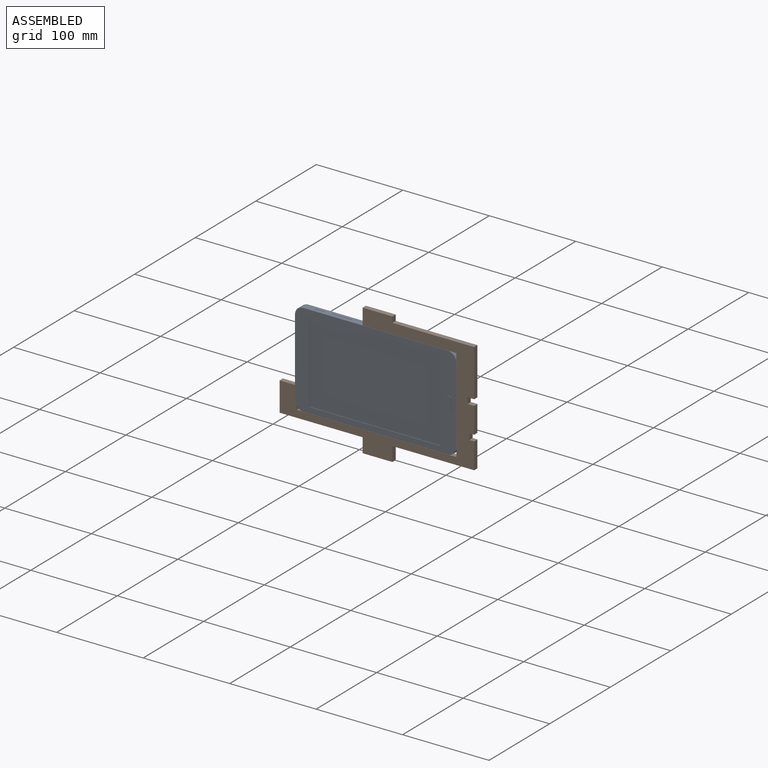
[diagram: assembled view]
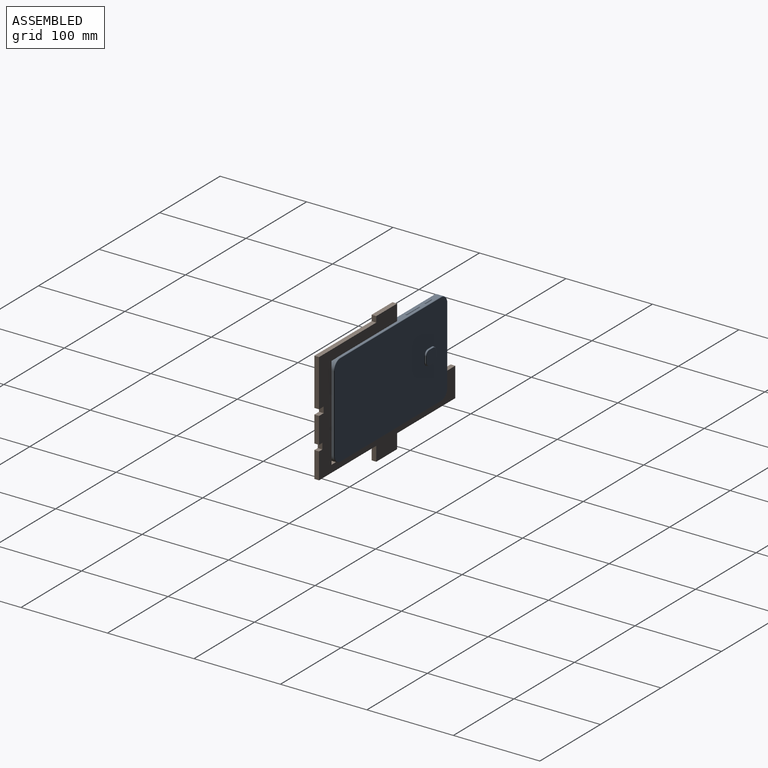
[diagram: assembled view, second angle]
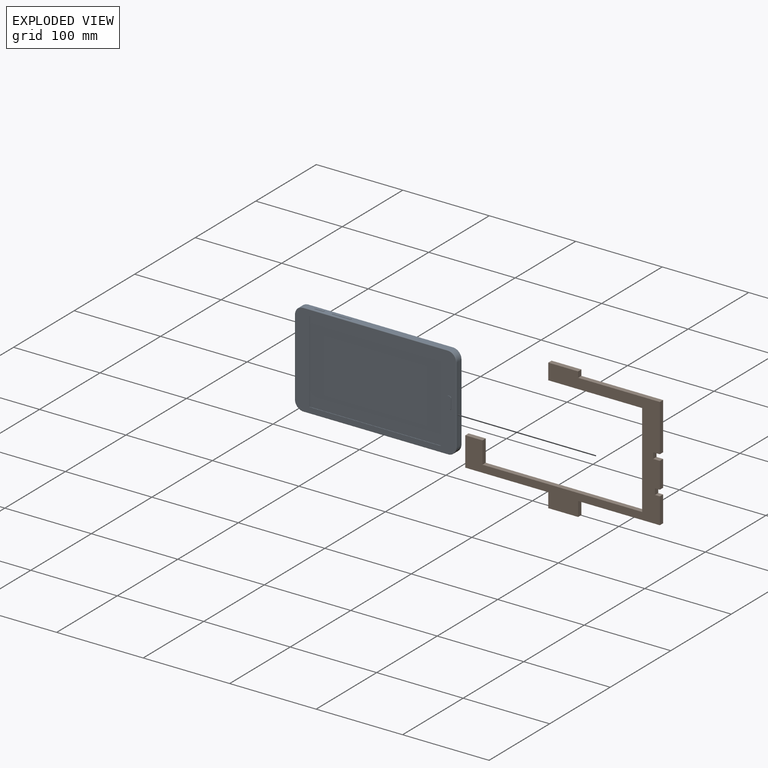
[diagram: exploded view]
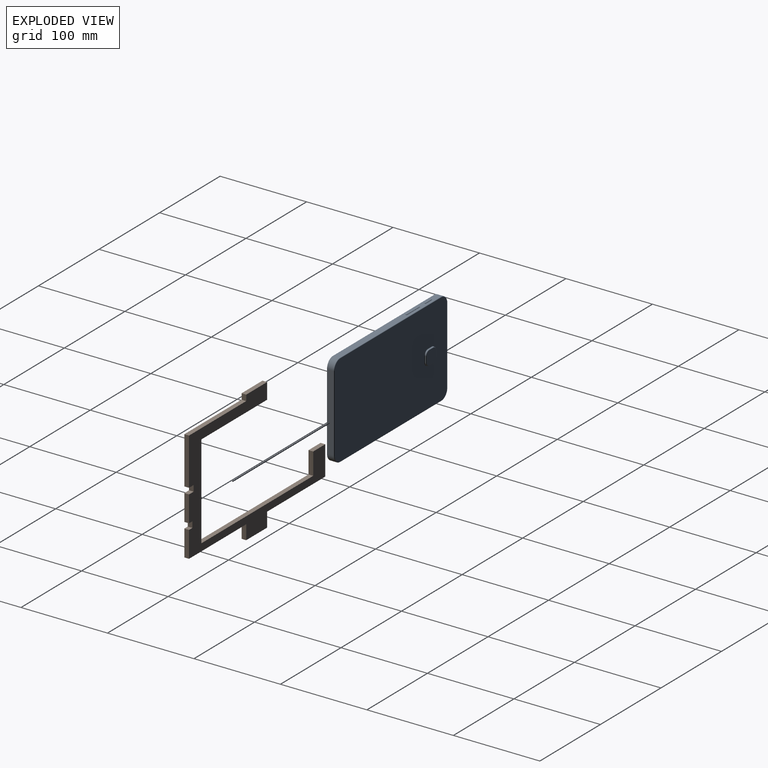
[diagram: exploded view, second angle]
ASSEMBLY  parts=2 mates=3
PART A: 106 faces, bbox 188.5x110.4x11.1 mm
  f0: plane 88.8x7.7mm, normal (-1,0,0), area 664.8mm2, adj f6,f7,f16,f23,f99,f100,f101,f102
  f1: plane 185.9x107.8mm, normal (0,0,1), area 5426mm2, adj f10,f11,f12,f13,f14,f15,f16,f17
  f2: plane 166.9x7.7mm, normal (0,1,0), area 1231.4mm2, adj f6,f9,f15,f24,f26,f27,f28,f29
  f3: plane 166.9x7.7mm, normal (0,-1,0), area 1285.1mm2, adj f7,f8,f12,f19
  f4: plane 88.8x7.7mm, normal (1,0,0), area 683.8mm2, adj f8,f9,f11,f20
  f5: plane 185.9x107.8mm, normal (0,0,-1), area 19675.2mm2, adj f18,f19,f20,f21,f22,f23,f24,f25
  f6: cylinder r=10mm len=10mm, axis (0,0,1), area 121mm2, adj f0,f2,f17,f25
  f7: cylinder r=10mm len=10mm, axis (0,0,-1), area 121mm2, adj f0,f3,f14,f21
  f8: cylinder r=10mm len=10mm, axis (0,0,1), area 121mm2, adj f3,f4,f10,f18
  f9: cylinder r=10mm len=10mm, axis (0,0,-1), area 121mm2, adj f2,f4,f13,f22
  f10: torus R=9.5mm, axis (0,0,1), area 12.1mm2, adj f1,f8,f11,f12
  f11: cylinder r=0.5mm len=88.8mm, axis (0,-1,0), area 69.7mm2, adj f1,f4,f10,f13
  f12: cylinder r=0.5mm len=166.9mm, axis (-1,0,0), area 131.1mm2, adj f1,f3,f10,f14
  f13: torus R=9.5mm, axis (0,0,1), area 12.1mm2, adj f1,f9,f11,f15
  f14: torus R=9.5mm, axis (0,0,1), area 12.1mm2, adj f1,f7,f12,f16
  f15: cylinder r=0.5mm len=166.9mm, axis (1,0,0), area 131.1mm2, adj f1,f2,f13,f17
  f16: cylinder r=0.5mm len=88.8mm, axis (0,1,0), area 69.7mm2, adj f0,f1,f14,f17
  f17: torus R=9.5mm, axis (0,0,1), area 12.1mm2, adj f1,f6,f15,f16
  f18: torus R=9.5mm, axis (0,0,1), area 12.1mm2, adj f5,f8,f19,f20
  f19: cylinder r=0.5mm len=166.9mm, axis (1,0,0), area 131.1mm2, adj f3,f5,f18,f21
  f20: cylinder r=0.5mm len=88.8mm, axis (0,1,0), area 69.7mm2, adj f4,f5,f18,f22
  f21: torus R=9.5mm, axis (0,0,1), area 12.1mm2, adj f5,f7,f19,f23
  f22: torus R=9.5mm, axis (0,0,1), area 12.1mm2, adj f5,f9,f20,f24
  f23: cylinder r=0.5mm len=88.8mm, axis (0,-1,0), area 69.7mm2, adj f0,f5,f21,f25
  f24: cylinder r=0.5mm len=166.9mm, axis (-1,0,0), area 131.1mm2, adj f2,f5,f22,f25
  f25: torus R=9.5mm, axis (0,0,1), area 12.1mm2, adj f5,f6,f23,f24
  f26: plane 10.3x0.3mm, normal (0,0,-1), area 3.1mm2, adj f2,f53,f57,f59
  f27: plane 1.25x0.3mm, normal (-1,0,0), area 0.4mm2, adj f2,f48,f52,f53
  f28: plane 10.3x0.3mm, normal (0,0,1), area 3.1mm2, adj f2,f48,f50,f51
  f29: plane 1.25x0.3mm, normal (1,0,0), area 0.4mm2, adj f2,f50,f56,f59
  f30: plane 10.3x1.25mm, normal (0,1,0), area 12.9mm2, adj f51,f52,f56,f57
  f31: plane 21.5x0.3mm, normal (0,0,-1), area 6.5mm2, adj f2,f38,f44,f47
  f32: plane 1.25x0.3mm, normal (-1,0,0), area 0.4mm2, adj f2,f41,f45,f47
  f33: plane 21.5x0.3mm, normal (0,0,1), area 6.5mm2, adj f2,f36,f40,f41
  f34: plane 1.25x0.3mm, normal (1,0,0), area 0.4mm2, adj f2,f36,f38,f39
  f35: plane 21.5x1.25mm, normal (0,1,0), area 26.9mm2, adj f39,f40,f44,f45
  f36: cylinder r=0.2mm len=0.3mm, axis (0,1,0), area 0.1mm2, adj f2,f33,f34,f37
  f37: sphere r=0.2mm, area 0.1mm2, adj f36,f39,f40
  f38: cylinder r=0.2mm len=0.3mm, axis (0,-1,0), area 0.1mm2, adj f2,f31,f34,f42
  f39: cylinder r=0.2mm len=1.25mm, axis (0,0,1), area 0.4mm2, adj f34,f35,f37,f42
  f40: cylinder r=0.2mm len=21.5mm, axis (-1,0,0), area 6.8mm2, adj f33,f35,f37,f43
  f41: cylinder r=0.2mm len=0.3mm, axis (0,-1,0), area 0.1mm2, adj f2,f32,f33,f43
  f42: sphere r=0.2mm, area 0.1mm2, adj f38,f39,f44
  f43: sphere r=0.2mm, area 0.1mm2, adj f40,f41,f45
  f44: cylinder r=0.2mm len=21.5mm, axis (1,0,0), area 6.8mm2, adj f31,f35,f42,f46
  f45: cylinder r=0.2mm len=1.25mm, axis (0,0,-1), area 0.4mm2, adj f32,f35,f43,f46
  f46: sphere r=0.2mm, area 0.1mm2, adj f44,f45,f47
  f47: cylinder r=0.2mm len=0.3mm, axis (0,1,0), area 0.1mm2, adj f2,f31,f32,f46
  f48: cylinder r=0.2mm len=0.3mm, axis (0,-1,0), area 0.1mm2, adj f2,f27,f28,f49
  f49: sphere r=0.2mm, area 0.1mm2, adj f48,f51,f52
  f50: cylinder r=0.2mm len=0.3mm, axis (0,1,0), area 0.1mm2, adj f2,f28,f29,f54
  f51: cylinder r=0.2mm len=10.3mm, axis (-1,0,0), area 3.2mm2, adj f28,f30,f49,f54
  f52: cylinder r=0.2mm len=1.25mm, axis (0,0,-1), area 0.4mm2, adj f27,f30,f49,f55
  f53: cylinder r=0.2mm len=0.3mm, axis (0,1,0), area 0.1mm2, adj f2,f26,f27,f55
  f54: sphere r=0.2mm, area 0.1mm2, adj f50,f51,f56
  f55: sphere r=0.2mm, area 0.1mm2, adj f52,f53,f57
  f56: cylinder r=0.2mm len=1.25mm, axis (0,0,1), area 0.4mm2, adj f29,f30,f54,f58
  f57: cylinder r=0.2mm len=10.3mm, axis (1,0,0), area 3.2mm2, adj f26,f30,f55,f58
  f58: sphere r=0.2mm, area 0.1mm2, adj f56,f57,f59
  f59: cylinder r=0.2mm len=0.3mm, axis (0,-1,0), area 0.1mm2, adj f2,f26,f29,f58
  f60: plane 6.7x0.9mm, normal (1,0,0), area 6mm2, adj f65,f68,f74,f82
  f61: plane 6.7x0.9mm, normal (0,-1,0), area 6mm2, adj f65,f66,f70,f83
  f62: plane 6.7x0.9mm, normal (-1,0,0), area 6mm2, adj f66,f67,f71,f79
  f63: plane 6.7x0.9mm, normal (0,1,0), area 6mm2, adj f67,f68,f75,f78
  f64: plane 15.7x15.7mm, normal (0,0,-1), area 229.1mm2, adj f77,f78,f79,f80,f81,f82,f83,f84
  f65: cylinder r=5mm len=5mm, axis (0,0,-1), area 7.1mm2, adj f60,f61,f72,f84
  f66: cylinder r=5mm len=5mm, axis (0,0,1), area 7.1mm2, adj f61,f62,f69,f81
  f67: cylinder r=5mm len=5mm, axis (0,0,-1), area 7.1mm2, adj f62,f63,f73,f77
  f68: cylinder r=5mm len=5mm, axis (0,0,1), area 7.1mm2, adj f60,f63,f76,f80
  f69: torus R=5.5mm, axis (0,0,1), area 6.4mm2, adj f5,f66,f70,f71
  f70: cylinder r=0.5mm len=6.7mm, axis (1,0,0), area 5.3mm2, adj f5,f61,f69,f72
  f71: cylinder r=0.5mm len=6.7mm, axis (0,-1,0), area 5.3mm2, adj f5,f62,f69,f73
  f72: torus R=5.5mm, axis (0,0,1), area 6.4mm2, adj f5,f65,f70,f74
  f73: torus R=5.5mm, axis (0,0,1), area 6.4mm2, adj f5,f67,f71,f75
  f74: cylinder r=0.5mm len=6.7mm, axis (0,1,0), area 5.3mm2, adj f5,f60,f72,f76
  f75: cylinder r=0.5mm len=6.7mm, axis (-1,0,0), area 5.3mm2, adj f5,f63,f73,f76
  f76: torus R=5.5mm, axis (0,0,1), area 6.4mm2, adj f5,f68,f74,f75
  f77: torus R=4.5mm, axis (0,0,-1), area 5.9mm2, adj f64,f67,f78,f79
  f78: cylinder r=0.5mm len=6.7mm, axis (-1,0,0), area 5.3mm2, adj f63,f64,f77,f80
  f79: cylinder r=0.5mm len=6.7mm, axis (0,-1,0), area 5.3mm2, adj f62,f64,f77,f81
  f80: torus R=4.5mm, axis (0,0,-1), area 5.9mm2, adj f64,f68,f78,f82
  f81: torus R=4.5mm, axis (0,0,-1), area 5.9mm2, adj f64,f66,f79,f83
  f82: cylinder r=0.5mm len=6.7mm, axis (0,1,0), area 5.3mm2, adj f60,f64,f80,f84
  f83: cylinder r=0.5mm len=6.7mm, axis (1,0,0), area 5.3mm2, adj f61,f64,f81,f84
  f84: torus R=4.5mm, axis (0,0,-1), area 5.9mm2, adj f64,f65,f82,f83
  f85: plane 152x0.5mm, normal (0,-1,0), area 76mm2, adj f1,f86,f88,f89
  f86: plane 95.2x0.5mm, normal (1,0,0), area 47.6mm2, adj f1,f85,f87,f89
  f87: plane 152x0.5mm, normal (0,1,0), area 76mm2, adj f1,f86,f88,f89
  f88: plane 95.2x0.5mm, normal (-1,0,0), area 47.6mm2, adj f1,f85,f87,f89
  f89: plane 152x95.2mm, normal (0,0,1), area 14470.4mm2, adj f85,f86,f87,f88
  f90: plane 10.5x0.5mm, normal (-1,0,0), area 5.3mm2, adj f1,f94,f95,f98
  f91: plane 0.8x0.5mm, normal (0,-1,0), area 0.4mm2, adj f1,f94,f95,f96
  f92: plane 10.5x0.5mm, normal (1,0,0), area 5.3mm2, adj f1,f94,f96,f97
  f93: plane 0.8x0.5mm, normal (0,1,0), area 0.4mm2, adj f1,f94,f97,f98
  f94: plane 14.5x4.8mm, normal (0,0,1), area 66.2mm2, adj f90,f91,f92,f93,f95,f96,f97,f98
  f95: cylinder r=2mm len=2mm, axis (0,0,1), area 1.6mm2, adj f1,f90,f91,f94
  f96: cylinder r=2mm len=2mm, axis (0,0,-1), area 1.6mm2, adj f1,f91,f92,f94
  f97: cylinder r=2mm len=2mm, axis (0,0,1), area 1.6mm2, adj f1,f92,f93,f94
  f98: cylinder r=2mm len=2mm, axis (0,0,-1), area 1.6mm2, adj f1,f90,f93,f94
  f99: plane 25x6mm, normal (0,0,-1), area 150mm2, adj f0,f103,f104,f105
  f100: plane 25x1.5mm, normal (0,-1,0), area 37.5mm2, adj f0,f101,f103,f104
  f101: plane 25x8mm, normal (0,0,1), area 200mm2, adj f0,f100,f102,f103
  f102: plane 25x1.5mm, normal (0,1,0), area 37.5mm2, adj f0,f101,f103,f105
  f103: plane 8x2.5mm, normal (-1,0,0), area 19mm2, adj f99,f100,f101,f102,f104,f105
  f104: plane 25x1mm, normal (0,-0.71,-0.71), area 35.4mm2, adj f0,f99,f100,f103
  f105: plane 25x1mm, normal (0,0.71,-0.71), area 35.4mm2, adj f0,f99,f102,f103
PART B: 26 faces, bbox 225x5.4x152.1 mm
  f0: plane 94.5x5.4mm, normal (0,0,1), area 510.3mm2, adj f1,f23,f24,f25
  f1: plane 54.59x5.4mm, normal (-1,0,0), area 294.8mm2, adj f0,f2,f24,f25
  f2: plane 7.63x5.4mm, normal (0,0,-1), area 41.2mm2, adj f1,f3,f24,f25
  f3: plane 6.94x5.4mm, normal (-1,0,0), area 37.5mm2, adj f2,f4,f24,f25
  f4: plane 7.63x5.4mm, normal (0,0,1), area 41.2mm2, adj f3,f5,f24,f25
  f5: plane 30.17x5.4mm, normal (-1,0,0), area 162.9mm2, adj f4,f6,f24,f25
  f6: plane 5.55x5.4mm, normal (0,0,-1), area 30mm2, adj f5,f7,f24,f25
  f7: plane 6.94x5.4mm, normal (-1,0,0), area 37.5mm2, adj f6,f8,f24,f25
  f8: plane 5.55x5.4mm, normal (0,0,1), area 30mm2, adj f7,f9,f24,f25
  f9: plane 30.17x5.4mm, normal (-1,0,0), area 162.9mm2, adj f8,f10,f24,f25
  f10: plane 94.5x5.4mm, normal (0,0,-1), area 510.3mm2, adj f9,f11,f24,f25
  f11: plane 16.65x5.4mm, normal (-1,0,0), area 89.9mm2, adj f10,f12,f24,f25
  f12: plane 34.5x5.4mm, normal (0,0,-1), area 186.3mm2, adj f11,f13,f24,f25
  f13: plane 16.65x5.4mm, normal (1,0,0), area 89.9mm2, adj f12,f14,f24,f25
  f14: plane 96x5.4mm, normal (0,0,-1), area 518.4mm2, adj f13,f15,f24,f25
  f15: plane 33.8x5.4mm, normal (1,0,0), area 182.5mm2, adj f14,f16,f24,f25
  f16: plane 19.9x5.4mm, normal (0,0,1), area 107.5mm2, adj f15,f17,f24,f25
  f17: plane 25.4x5.4mm, normal (-1,0,0), area 137.2mm2, adj f16,f18,f24,f25
  f18: plane 184.6x5.4mm, normal (0,0,1), area 996.8mm2, adj f17,f19,f24,f25
  f19: plane 108.6x5.4mm, normal (1,0,0), area 586.4mm2, adj f18,f20,f24,f25
  f20: plane 108.5x5.4mm, normal (0,0,-1), area 585.9mm2, adj f19,f21,f24,f25
  f21: plane 18.5x5.4mm, normal (1,0,0), area 99.9mm2, adj f20,f22,f24,f25
  f22: plane 34.5x5.4mm, normal (0,0,1), area 186.3mm2, adj f21,f23,f24,f25
  f23: plane 6.7x5.4mm, normal (-1,0,0), area 36.2mm2, adj f0,f22,f24,f25
  f24: plane 225x152.15mm, normal (0,-1,0), area 6858mm2, adj f0,f1,f2,f3,f4,f5,f6,f7
  f25: plane 225x152.15mm, normal (0,1,0), area 6858mm2, adj f0,f1,f2,f3,f4,f5,f6,f7
PLACE A rot(axis=(1,0,0),90deg) t=(27.13,-3.34,14.3)mm
PLACE B rot(axis=(0,0,1),180deg) t=(46.58,-12.04,-3.42)mm fixed
MATE planar A.f4 <-> B.f19  axis (1,0,0) through (120.58,-7.69,14.3)mm
MATE planar A.f3 <-> B.f18  axis (0,0,-1) through (27.13,-7.69,-40.1)mm
MATE planar A.f8 <-> B.f25  axis (0,-1,0) through (110.58,-12.04,-30.1)mm
